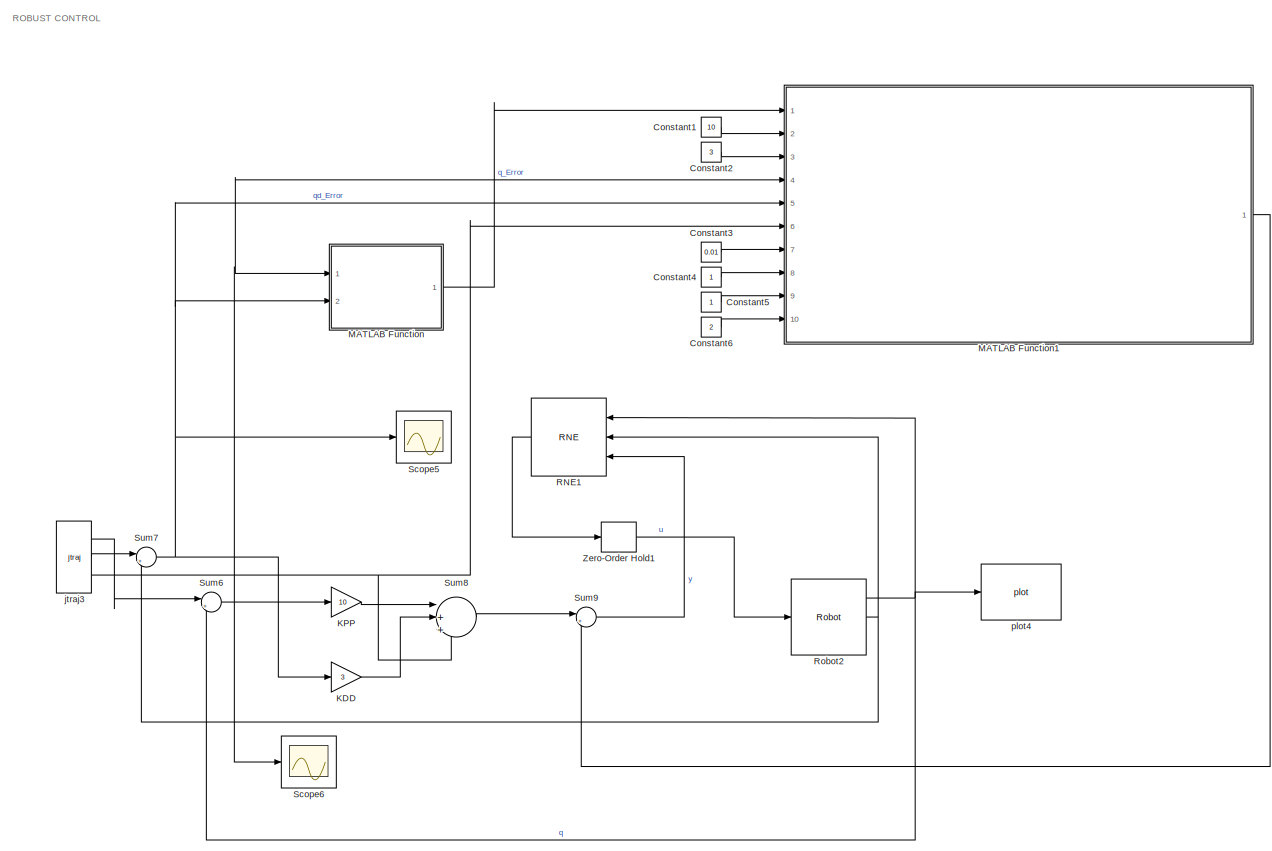
[diagram: root canvas - part 1/6, top right region]
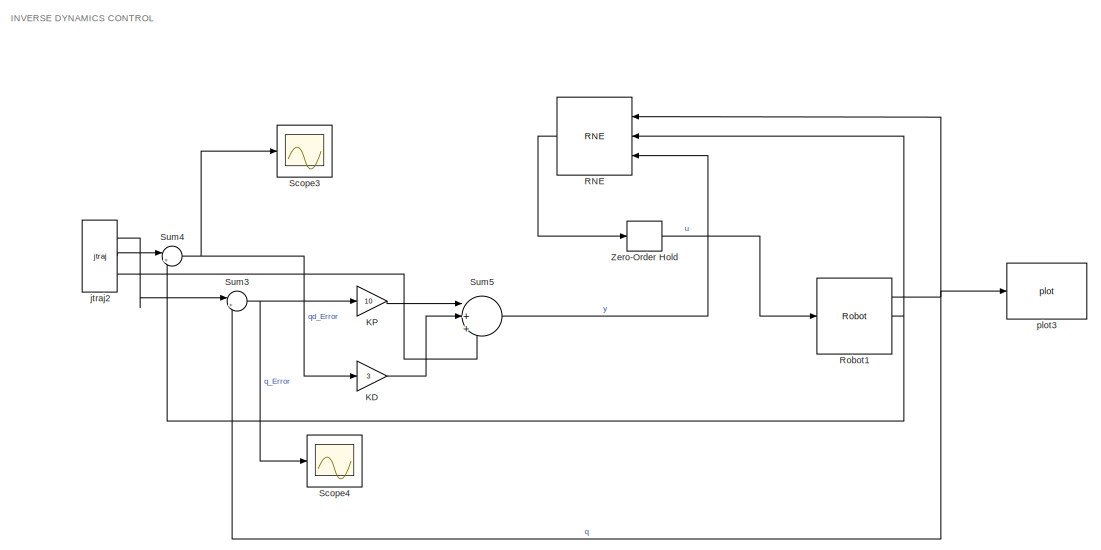
[diagram: root canvas - part 2/6, top center region]
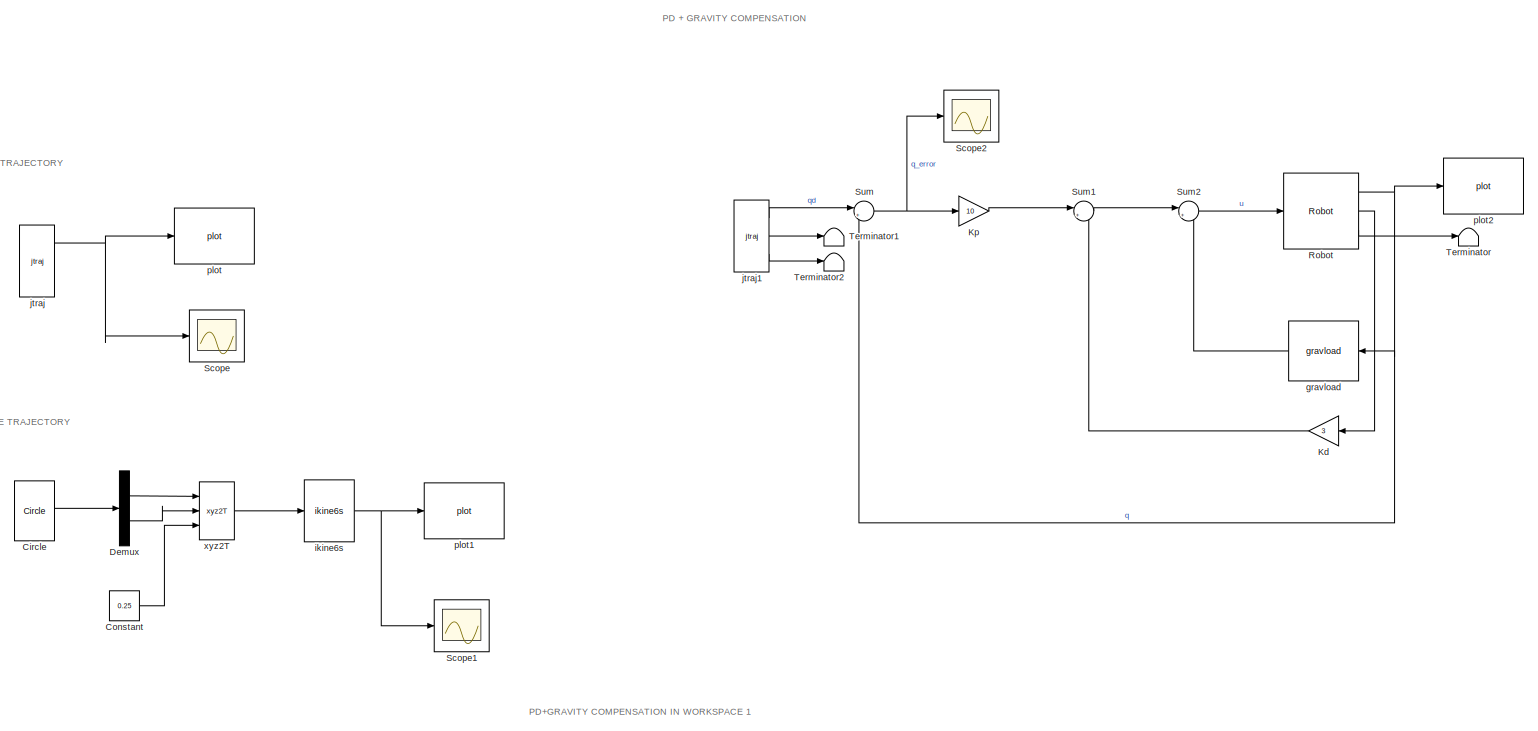
[diagram: root canvas - part 3/6, middle left region]
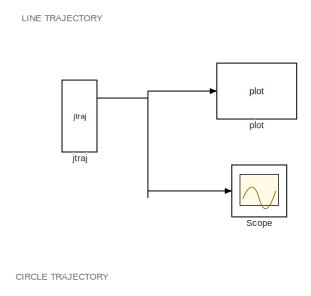
[diagram: root canvas - part 4/6, middle left region]
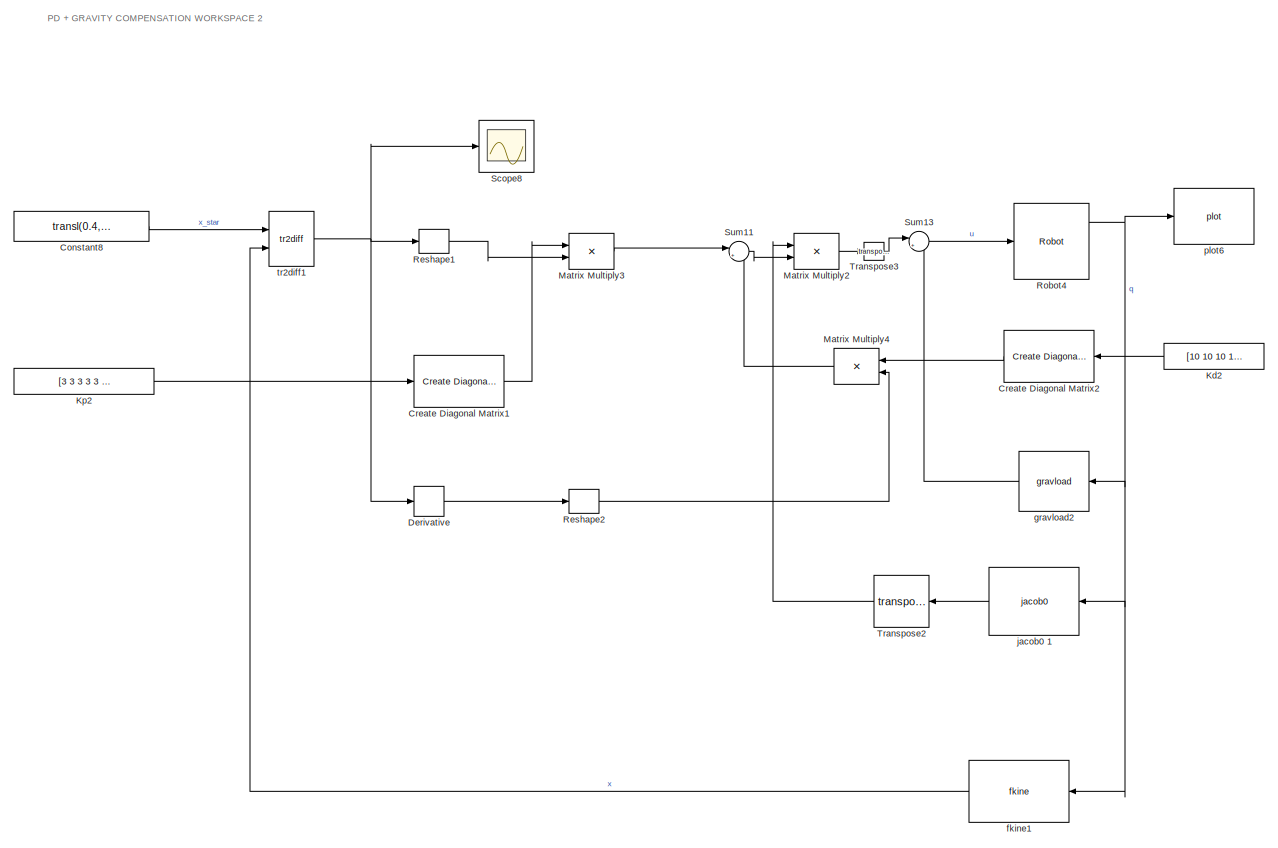
[diagram: root canvas - part 5/6, bottom center region]
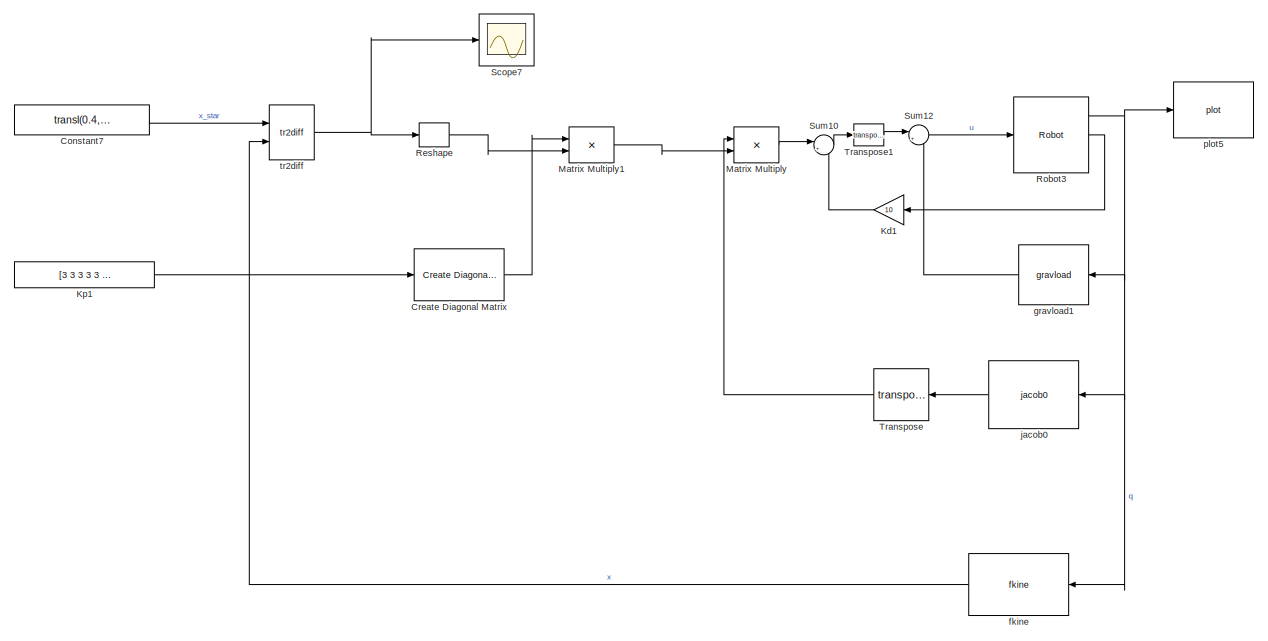
[diagram: root canvas - part 6/6, bottom left region]
MODEL slx_2fe8f5f0938f
KIND model
CONFIG AbsTol = auto
CONFIG EnableMultiTasking = off
CONFIG FixedStep = auto
CONFIG MaxStep = 0.01
CONFIG MinStep = auto
CONFIG RelTol = 1e-3
CONFIG SampleTimeConstraint = Unconstrained
CONFIG Solver = ode45
CONFIG SolverName = ode45
CONFIG StartTime = 0.0
CONFIG StopTime = 10
BLOCK [Reference] Circle  REF=roblocks/Toolbox/Circle  (lib defined in mdl_2a292b13c81b, mdl_69400f8cfe22, +12 more)
  Commented = on
  Ports = [0, 1]
  SourceBlock = roblocks/Toolbox/Circle
BLOCK [Constant] Constant
  Commented = on
  Value = 0.25
BLOCK [Constant] Constant1
  Value = 10
BLOCK [Constant] Constant2
  Value = 3
BLOCK [Constant] Constant3
  Value = 0.01
BLOCK [Constant] Constant4
BLOCK [Constant] Constant5
BLOCK [Constant] Constant6
  Value = 2
BLOCK [Constant] Constant7
  Commented = on
  Value = transl(0.4, 0.5, 0.2)
BLOCK [Constant] Constant8
  Commented = on
  Value = transl(0.4, 0.5, 0.2)
BLOCK [Reference] Create Diagonal Matrix  REF=dspmtrx3/Create Diagonal
Matrix
  Commented = on
  Ports = [1, 1]
  SourceBlock = dspmtrx3/Create Diagonal\nMatrix
  SourceProductBaseCode = DS
  SourceProductName = DSP System Toolbox
  SourceType = Create Diagonal Matrix
BLOCK [Reference] Create Diagonal Matrix1  REF=dspmtrx3/Create Diagonal
Matrix
  Commented = on
  Ports = [1, 1]
  SourceBlock = dspmtrx3/Create Diagonal\nMatrix
  SourceProductBaseCode = DS
  SourceProductName = DSP System Toolbox
  SourceType = Create Diagonal Matrix
BLOCK [Reference] Create Diagonal Matrix2  REF=dspmtrx3/Create Diagonal
Matrix
  Commented = on
  Ports = [1, 1]
  SourceBlock = dspmtrx3/Create Diagonal\nMatrix
  SourceProductBaseCode = DS
  SourceProductName = DSP System Toolbox
  SourceType = Create Diagonal Matrix
BLOCK [Demux] Demux
  Commented = on
  DisplayOption = bar
  Outputs = 2
  Ports = [1, 2]
BLOCK [Derivative] Derivative
  Commented = on
BLOCK [Gain] KD
  Commented = on
  Gain = 3
  OutDataTypeStr = Inherit: Inherit via internal rule
  ParamDataTypeStr = Inherit: Inherit via internal rule
  SaturateOnIntegerOverflow = off
BLOCK [Gain] KDD
  Gain = 3
  OutDataTypeStr = Inherit: Inherit via internal rule
  ParamDataTypeStr = Inherit: Inherit via internal rule
  SaturateOnIntegerOverflow = off
BLOCK [Gain] KP
  Commented = on
  Gain = 10
  OutDataTypeStr = Inherit: Inherit via internal rule
  ParamDataTypeStr = Inherit: Inherit via internal rule
  SaturateOnIntegerOverflow = off
BLOCK [Gain] KPP
  Gain = 10
  OutDataTypeStr = Inherit: Inherit via internal rule
  ParamDataTypeStr = Inherit: Inherit via internal rule
  SaturateOnIntegerOverflow = off
BLOCK [Gain] Kd
  Commented = on
  Gain = 3
  OutDataTypeStr = Inherit: Inherit via internal rule
  ParamDataTypeStr = Inherit: Inherit via internal rule
  SaturateOnIntegerOverflow = off
BLOCK [Gain] Kd1
  Commented = on
  Gain = 10
  OutDataTypeStr = Inherit: Inherit via internal rule
  ParamDataTypeStr = Inherit: Inherit via internal rule
  SaturateOnIntegerOverflow = off
BLOCK [Constant] Kd2 
  Commented = on
  Value = [10 10 10 10 10 10]
BLOCK [Gain] Kp
  Commented = on
  Gain = 10
  OutDataTypeStr = Inherit: Inherit via internal rule
  ParamDataTypeStr = Inherit: Inherit via internal rule
  SaturateOnIntegerOverflow = off
BLOCK [Constant] Kp1
  Commented = on
  Value = [3 3 3 3 3 3]
BLOCK [Constant] Kp2
  Commented = on
  Value = [3 3 3 3 3 3]
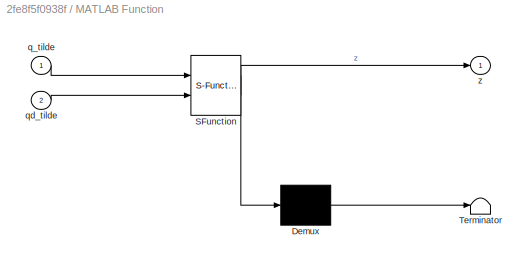
BLOCK [SubSystem] MATLAB Function
  ErrorFcn = Stateflow.Translate.translate
  PermitHierarchicalResolution = ExplicitOnly
  Ports = [2, 1]
  RequestExecContextInheritance = off
  SFBlockType = MATLAB Function
  TreatAsAtomicUnit = on
BLOCK [Demux] MATLAB Function/ Demux 
  Outputs = 1
  Ports = [1, 1]
BLOCK [S-Function] MATLAB Function/ SFunction 
  EnableBusSupport = on
  FunctionName = sf_sfun
  PortCounts = [2 2]
  Ports = [2, 2]
  SFcnIsStateOwnerBlock = off
  SFunctionDeploymentMode = off
  Tag = Stateflow S-Function 2
BLOCK [Terminator] MATLAB Function/ Terminator 
BLOCK [Inport] MATLAB Function/q_tilde
  IconDisplay = Port number
BLOCK [Inport] MATLAB Function/qd_tilde
  IconDisplay = Port number
  Port = 2
BLOCK [Outport] MATLAB Function/z
  IconDisplay = Port number
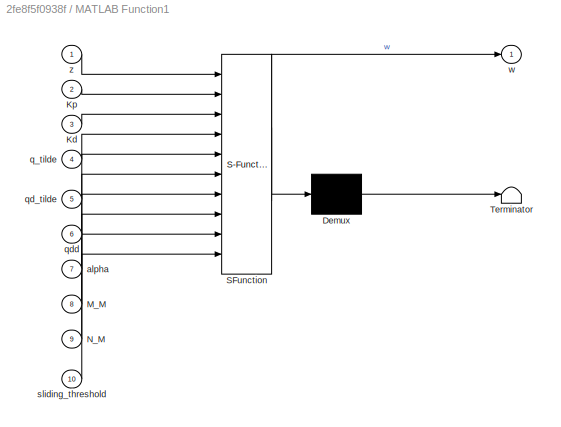
BLOCK [SubSystem] MATLAB Function1
  ErrorFcn = Stateflow.Translate.translate
  PermitHierarchicalResolution = ExplicitOnly
  Ports = [10, 1]
  RequestExecContextInheritance = off
  SFBlockType = MATLAB Function
  TreatAsAtomicUnit = on
BLOCK [Demux] MATLAB Function1/ Demux 
  Outputs = 1
  Ports = [1, 1]
BLOCK [S-Function] MATLAB Function1/ SFunction 
  EnableBusSupport = on
  FunctionName = sf_sfun
  PortCounts = [10 2]
  Ports = [10, 2]
  SFcnIsStateOwnerBlock = off
  SFunctionDeploymentMode = off
  Tag = Stateflow S-Function 1
BLOCK [Terminator] MATLAB Function1/ Terminator 
BLOCK [Inport] MATLAB Function1/Kd
  IconDisplay = Port number
  Port = 3
BLOCK [Inport] MATLAB Function1/Kp
  IconDisplay = Port number
  Port = 2
BLOCK [Inport] MATLAB Function1/M_M
  IconDisplay = Port number
  Port = 8
BLOCK [Inport] MATLAB Function1/N_M
  IconDisplay = Port number
  Port = 9
BLOCK [Inport] MATLAB Function1/alpha
  IconDisplay = Port number
  Port = 7
BLOCK [Inport] MATLAB Function1/q_tilde
  IconDisplay = Port number
  Port = 4
BLOCK [Inport] MATLAB Function1/qd_tilde
  IconDisplay = Port number
  Port = 5
BLOCK [Inport] MATLAB Function1/qdd
  IconDisplay = Port number
  Port = 6
BLOCK [Inport] MATLAB Function1/sliding_threshold
  IconDisplay = Port number
  Port = 10
BLOCK [Outport] MATLAB Function1/w
  IconDisplay = Port number
BLOCK [Inport] MATLAB Function1/z
  IconDisplay = Port number
BLOCK [Product] Matrix Multiply
  Commented = on
  InputSameDT = off
  Multiplication = Matrix(*)
  OutDataTypeStr = Inherit: Inherit via internal rule
  Ports = [2, 1]
  RndMeth = Floor
  SaturateOnIntegerOverflow = off
BLOCK [Product] Matrix Multiply1
  Commented = on
  InputSameDT = off
  Multiplication = Matrix(*)
  OutDataTypeStr = Inherit: Inherit via internal rule
  Ports = [2, 1]
  RndMeth = Floor
  SaturateOnIntegerOverflow = off
BLOCK [Product] Matrix Multiply2
  Commented = on
  InputSameDT = off
  Multiplication = Matrix(*)
  OutDataTypeStr = Inherit: Inherit via internal rule
  Ports = [2, 1]
  RndMeth = Floor
  SaturateOnIntegerOverflow = off
BLOCK [Product] Matrix Multiply3
  Commented = on
  InputSameDT = off
  Multiplication = Matrix(*)
  OutDataTypeStr = Inherit: Inherit via internal rule
  Ports = [2, 1]
  RndMeth = Floor
  SaturateOnIntegerOverflow = off
BLOCK [Product] Matrix Multiply4
  Commented = on
  InputSameDT = off
  Multiplication = Matrix(*)
  OutDataTypeStr = Inherit: Inherit via internal rule
  Ports = [2, 1]
  RndMeth = Floor
  SaturateOnIntegerOverflow = off
BLOCK [Reference] RNE  REF=roblocks/Arm/RNE  (lib defined in mdl_2a292b13c81b, mdl_69400f8cfe22, +12 more)
  Commented = on
  Ports = [3, 1]
  SourceBlock = roblocks/Arm/RNE
BLOCK [Reference] RNE1  REF=roblocks/Arm/RNE  (lib defined in mdl_2a292b13c81b, mdl_69400f8cfe22, +12 more)
  Ports = [3, 1]
  SourceBlock = roblocks/Arm/RNE
BLOCK [Reshape] Reshape
  Commented = on
  OutputDimensionality = Column vector (2-D)
  Ports = [1, 1]
BLOCK [Reshape] Reshape1
  Commented = on
  OutputDimensionality = Column vector (2-D)
  Ports = [1, 1]
BLOCK [Reshape] Reshape2
  Commented = on
  OutputDimensionality = Column vector (2-D)
  Ports = [1, 1]
BLOCK [Reference] Robot  REF=roblocks/Arm/Robot  (lib defined in mdl_2a292b13c81b, mdl_69400f8cfe22, +12 more)
  Commented = on
  Ports = [1, 3]
  SourceBlock = roblocks/Arm/Robot
BLOCK [Reference] Robot1  REF=roblocks/Arm/Robot  (lib defined in mdl_2a292b13c81b, mdl_69400f8cfe22, +12 more)
  Commented = on
  Ports = [1, 3]
  SourceBlock = roblocks/Arm/Robot
BLOCK [Reference] Robot2  REF=roblocks/Arm/Robot  (lib defined in mdl_2a292b13c81b, mdl_69400f8cfe22, +12 more)
  Ports = [1, 3]
  SourceBlock = roblocks/Arm/Robot
BLOCK [Reference] Robot3  REF=roblocks/Arm/Robot  (lib defined in mdl_2a292b13c81b, mdl_69400f8cfe22, +12 more)
  Commented = on
  Ports = [1, 3]
  SourceBlock = roblocks/Arm/Robot
BLOCK [Reference] Robot4  REF=roblocks/Arm/Robot  (lib defined in mdl_2a292b13c81b, mdl_69400f8cfe22, +12 more)
  Commented = on
  Ports = [1, 3]
  SourceBlock = roblocks/Arm/Robot
BLOCK [Scope] Scope
  Commented = on
  Floating = off
  NumInputPorts = 1
  Ports = [1]
  ScopeSpecificationString = Simulink.scopes.TimeScopeBlockCfg('CurrentConfiguration', extmgr.ConfigurationSet(extmgr.Configuration('Core','General UI',true,'FigureColor',[0 0 0]),extmgr.Configuration('Core','Source UI',true),extmgr.Configuration('Sources','WiredSimulink',true),extmgr.Configuration('Visuals','Time Domain',true,'SerializedDisplays',{struct('MinYLimReal','-1.2171','MaxYLimReal','4.35869','YLabelReal','q (rad)',...<+1629ch>
BLOCK [Scope] Scope1
  Commented = on
  Floating = off
  NumInputPorts = 1
  Ports = [1]
  ScopeSpecificationString = Simulink.scopes.TimeScopeBlockCfg('CurrentConfiguration', extmgr.ConfigurationSet(extmgr.Configuration('Core','General UI',true,'FigureColor',[0 0 0]),extmgr.Configuration('Core','Source UI',true),extmgr.Configuration('Sources','WiredSimulink',true,'DataLoggingVariableName','ScopeData1'),extmgr.Configuration('Visuals','Time Domain',true,'SerializedDisplays',{struct('MinYLimReal','-4','MaxYLimReal'...<+1646ch>
BLOCK [Scope] Scope2
  Commented = on
  Floating = off
  NumInputPorts = 1
  Ports = [1]
  ScopeSpecificationString = Simulink.scopes.TimeScopeBlockCfg('CurrentConfiguration', extmgr.ConfigurationSet(extmgr.Configuration('Core','General UI',true,'FigureColor',[0 0 0]),extmgr.Configuration('Core','Source UI',true),extmgr.Configuration('Sources','WiredSimulink',true,'DataLoggingVariableName','ScopeData2'),extmgr.Configuration('Visuals','Time Domain',true,'SerializedDisplays',{struct('MinYLimReal','-2','MaxYLimReal'...<+1650ch>
BLOCK [Scope] Scope3
  Commented = on
  Floating = off
  NumInputPorts = 1
  Ports = [1]
  ScopeSpecificationString = Simulink.scopes.TimeScopeBlockCfg('CurrentConfiguration', extmgr.ConfigurationSet(extmgr.Configuration('Core','General UI',true,'FigureColor',[0 0 0]),extmgr.Configuration('Core','Source UI',true),extmgr.Configuration('Sources','WiredSimulink',true,'DataLoggingVariableName','ScopeData1'),extmgr.Configuration('Visuals','Time Domain',true,'SerializedDisplays',{struct('MinYLimReal','-20','MaxYLimReal...<+1674ch>
BLOCK [Scope] Scope4
  Commented = on
  Floating = off
  NumInputPorts = 1
  Ports = [1]
  ScopeSpecificationString = Simulink.scopes.TimeScopeBlockCfg('CurrentConfiguration', extmgr.ConfigurationSet(extmgr.Configuration('Core','General UI',true,'FigureColor',[0 0 0]),extmgr.Configuration('Core','Source UI',true),extmgr.Configuration('Sources','WiredSimulink',true,'DataLoggingVariableName','ScopeData2'),extmgr.Configuration('Visuals','Time Domain',true,'SerializedDisplays',{struct('MinYLimReal','-5','MaxYLimReal'...<+1662ch>
BLOCK [Scope] Scope5
  Floating = off
  NumInputPorts = 1
  Ports = [1]
  ScopeSpecificationString = Simulink.scopes.TimeScopeBlockCfg('CurrentConfiguration', extmgr.ConfigurationSet(extmgr.Configuration('Core','General UI',true,'FigureColor',[0 0 0]),extmgr.Configuration('Core','Source UI',true),extmgr.Configuration('Sources','WiredSimulink',true,'DataLoggingVariableName','ScopeData3'),extmgr.Configuration('Visuals','Time Domain',true,'SerializedDisplays',{struct('MinYLimReal','-20','MaxYLimReal...<+1674ch>
BLOCK [Scope] Scope6
  Floating = off
  NumInputPorts = 1
  Ports = [1]
  ScopeSpecificationString = Simulink.scopes.TimeScopeBlockCfg('CurrentConfiguration', extmgr.ConfigurationSet(extmgr.Configuration('Core','General UI',true,'FigureColor',[0 0 0]),extmgr.Configuration('Core','Source UI',true),extmgr.Configuration('Sources','WiredSimulink',true,'DataLoggingVariableName','ScopeData4'),extmgr.Configuration('Visuals','Time Domain',true,'SerializedDisplays',{struct('MinYLimReal','-5','MaxYLimReal'...<+1662ch>
BLOCK [Scope] Scope7
  Commented = on
  Floating = off
  NumInputPorts = 1
  Ports = [1]
  ScopeSpecificationString = Simulink.scopes.TimeScopeBlockCfg('CurrentConfiguration', extmgr.ConfigurationSet(extmgr.Configuration('Core','General UI',true,'FigureColor',[0 0 0]),extmgr.Configuration('Core','Source UI',true),extmgr.Configuration('Sources','WiredSimulink',true,'DataLoggingVariableName','ScopeData1'),extmgr.Configuration('Visuals','Time Domain',true,'SerializedDisplays',{struct('MinYLimReal','-2','MaxYLimReal'...<+1674ch>
BLOCK [Scope] Scope8
  Commented = on
  Floating = off
  NumInputPorts = 1
  Ports = [1]
  ScopeSpecificationString = Simulink.scopes.TimeScopeBlockCfg('CurrentConfiguration', extmgr.ConfigurationSet(extmgr.Configuration('Core','General UI',true,'FigureColor',[0 0 0]),extmgr.Configuration('Core','Source UI',true),extmgr.Configuration('Sources','WiredSimulink',true,'DataLoggingVariableName','ScopeData1'),extmgr.Configuration('Visuals','Time Domain',true,'SerializedDisplays',{struct('MinYLimReal','-2','MaxYLimReal'...<+1680ch>
BLOCK [Sum] Sum
  Commented = on
  IconShape = round
  InputSameDT = off
  Inputs = |+-
  OutDataTypeStr = Inherit: Inherit via internal rule
  Ports = [2, 1]
  SaturateOnIntegerOverflow = off
BLOCK [Sum] Sum1
  Commented = on
  IconShape = round
  InputSameDT = off
  Inputs = |+-
  OutDataTypeStr = Inherit: Inherit via internal rule
  Ports = [2, 1]
  SaturateOnIntegerOverflow = off
BLOCK [Sum] Sum10
  Commented = on
  IconShape = round
  InputSameDT = off
  Inputs = |+-
  OutDataTypeStr = Inherit: Inherit via internal rule
  Ports = [2, 1]
  SaturateOnIntegerOverflow = off
BLOCK [Sum] Sum11
  Commented = on
  IconShape = round
  InputSameDT = off
  Inputs = |+-
  OutDataTypeStr = Inherit: Inherit via internal rule
  Ports = [2, 1]
  SaturateOnIntegerOverflow = off
BLOCK [Sum] Sum12
  Commented = on
  IconShape = round
  InputSameDT = off
  Inputs = |++
  OutDataTypeStr = Inherit: Inherit via internal rule
  Ports = [2, 1]
  SaturateOnIntegerOverflow = off
BLOCK [Sum] Sum13
  Commented = on
  IconShape = round
  InputSameDT = off
  Inputs = |++
  OutDataTypeStr = Inherit: Inherit via internal rule
  Ports = [2, 1]
  SaturateOnIntegerOverflow = off
BLOCK [Sum] Sum2
  Commented = on
  IconShape = round
  InputSameDT = off
  Inputs = |++
  OutDataTypeStr = Inherit: Inherit via internal rule
  Ports = [2, 1]
  SaturateOnIntegerOverflow = off
BLOCK [Sum] Sum3
  Commented = on
  IconShape = round
  InputSameDT = off
  Inputs = |+-
  OutDataTypeStr = Inherit: Inherit via internal rule
  Ports = [2, 1]
  SaturateOnIntegerOverflow = off
BLOCK [Sum] Sum4
  Commented = on
  IconShape = round
  InputSameDT = off
  Inputs = |+-
  OutDataTypeStr = Inherit: Inherit via internal rule
  Ports = [2, 1]
  SaturateOnIntegerOverflow = off
BLOCK [Sum] Sum5
  Commented = on
  IconShape = round
  InputSameDT = off
  Inputs = |+++
  OutDataTypeStr = Inherit: Inherit via internal rule
  Ports = [3, 1]
  SaturateOnIntegerOverflow = off
BLOCK [Sum] Sum6
  IconShape = round
  InputSameDT = off
  Inputs = |+-
  OutDataTypeStr = Inherit: Inherit via internal rule
  Ports = [2, 1]
  SaturateOnIntegerOverflow = off
BLOCK [Sum] Sum7
  IconShape = round
  InputSameDT = off
  Inputs = |+-
  OutDataTypeStr = Inherit: Inherit via internal rule
  Ports = [2, 1]
  SaturateOnIntegerOverflow = off
BLOCK [Sum] Sum8
  IconShape = round
  InputSameDT = off
  Inputs = |+++
  OutDataTypeStr = Inherit: Inherit via internal rule
  Ports = [3, 1]
  SaturateOnIntegerOverflow = off
BLOCK [Sum] Sum9
  IconShape = round
  InputSameDT = off
  Inputs = |++
  OutDataTypeStr = Inherit: Inherit via internal rule
  Ports = [2, 1]
  SaturateOnIntegerOverflow = off
BLOCK [Terminator] Terminator
  Commented = on
BLOCK [Terminator] Terminator1
  Commented = on
BLOCK [Terminator] Terminator2
  Commented = on
BLOCK [Math] Transpose
  Commented = on
  Operator = transpose
  Ports = [1, 1]
  SignedPower = off
BLOCK [Math] Transpose1
  Commented = on
  Operator = transpose
  Ports = [1, 1]
  SignedPower = off
BLOCK [Math] Transpose2
  Commented = on
  Operator = transpose
  Ports = [1, 1]
  SignedPower = off
BLOCK [Math] Transpose3
  Commented = on
  Operator = transpose
  Ports = [1, 1]
  SignedPower = off
BLOCK [ZeroOrderHold] Zero-Order Hold
  Commented = on
  SampleTime = -1
BLOCK [ZeroOrderHold] Zero-Order Hold1
  SampleTime = -1
BLOCK [Reference] fkine  REF=roblocks/Arm/fkine  (lib defined in mdl_2a292b13c81b, mdl_69400f8cfe22, +12 more)
  Commented = on
  Ports = [1, 1]
  SourceBlock = roblocks/Arm/fkine
BLOCK [Reference] fkine1  REF=roblocks/Arm/fkine  (lib defined in mdl_2a292b13c81b, mdl_69400f8cfe22, +12 more)
  Commented = on
  Ports = [1, 1]
  SourceBlock = roblocks/Arm/fkine
BLOCK [Reference] gravload  REF=roblocks/Arm/gravload  (lib defined in mdl_2a292b13c81b, mdl_69400f8cfe22, +12 more)
  Commented = on
  Ports = [1, 1]
  SourceBlock = roblocks/Arm/gravload
BLOCK [Reference] gravload1  REF=roblocks/Arm/gravload  (lib defined in mdl_2a292b13c81b, mdl_69400f8cfe22, +12 more)
  Commented = on
  Ports = [1, 1]
  SourceBlock = roblocks/Arm/gravload
BLOCK [Reference] gravload2  REF=roblocks/Arm/gravload  (lib defined in mdl_2a292b13c81b, mdl_69400f8cfe22, +12 more)
  Commented = on
  Ports = [1, 1]
  SourceBlock = roblocks/Arm/gravload
BLOCK [Reference] ikine6s  REF=roblocks/Arm/ikine6s  (lib defined in mdl_2a292b13c81b, mdl_69400f8cfe22, +12 more)
  Commented = on
  Ports = [1, 1]
  SourceBlock = roblocks/Arm/ikine6s
BLOCK [Reference] jacob0   REF=roblocks/Arm/jacob0  (lib defined in mdl_2a292b13c81b, mdl_69400f8cfe22, +12 more)

  Commented = on
  Ports = [1, 1]
  SourceBlock = roblocks/Arm/jacob0
BLOCK [Reference] jacob0 1  REF=roblocks/Arm/jacob0  (lib defined in mdl_2a292b13c81b, mdl_69400f8cfe22, +12 more)

  Commented = on
  Ports = [1, 1]
  SourceBlock = roblocks/Arm/jacob0
BLOCK [Reference] jtraj  REF=roblocks/Toolbox/jtraj  (lib defined in mdl_2a292b13c81b, mdl_69400f8cfe22, +12 more)
  Commented = on
  Ports = [0, 3]
  SourceBlock = roblocks/Toolbox/jtraj
BLOCK [Reference] jtraj1  REF=roblocks/Toolbox/jtraj  (lib defined in mdl_2a292b13c81b, mdl_69400f8cfe22, +12 more)
  Commented = on
  Ports = [0, 3]
  SourceBlock = roblocks/Toolbox/jtraj
BLOCK [Reference] jtraj2  REF=roblocks/Toolbox/jtraj  (lib defined in mdl_2a292b13c81b, mdl_69400f8cfe22, +12 more)
  Commented = on
  Ports = [0, 3]
  SourceBlock = roblocks/Toolbox/jtraj
BLOCK [Reference] jtraj3  REF=roblocks/Toolbox/jtraj  (lib defined in mdl_2a292b13c81b, mdl_69400f8cfe22, +12 more)
  Ports = [0, 3]
  SourceBlock = roblocks/Toolbox/jtraj
BLOCK [Reference] plot  REF=roblocks/Arm/plot  (lib defined in mdl_2a292b13c81b, mdl_69400f8cfe22, +12 more)
  Commented = on
  Ports = [1]
  SourceBlock = roblocks/Arm/plot
BLOCK [Reference] plot1  REF=roblocks/Arm/plot  (lib defined in mdl_2a292b13c81b, mdl_69400f8cfe22, +12 more)
  Commented = on
  Ports = [1]
  SourceBlock = roblocks/Arm/plot
BLOCK [Reference] plot2  REF=roblocks/Arm/plot  (lib defined in mdl_2a292b13c81b, mdl_69400f8cfe22, +12 more)
  Commented = on
  Ports = [1]
  SourceBlock = roblocks/Arm/plot
BLOCK [Reference] plot3  REF=roblocks/Arm/plot  (lib defined in mdl_2a292b13c81b, mdl_69400f8cfe22, +12 more)
  Commented = on
  Ports = [1]
  SourceBlock = roblocks/Arm/plot
BLOCK [Reference] plot4  REF=roblocks/Arm/plot  (lib defined in mdl_2a292b13c81b, mdl_69400f8cfe22, +12 more)
  Ports = [1]
  SourceBlock = roblocks/Arm/plot
BLOCK [Reference] plot5  REF=roblocks/Arm/plot  (lib defined in mdl_2a292b13c81b, mdl_69400f8cfe22, +12 more)
  Commented = on
  Ports = [1]
  SourceBlock = roblocks/Arm/plot
BLOCK [Reference] plot6  REF=roblocks/Arm/plot  (lib defined in mdl_2a292b13c81b, mdl_69400f8cfe22, +12 more)
  Commented = on
  Ports = [1]
  SourceBlock = roblocks/Arm/plot
BLOCK [Reference] tr2diff  REF=roblocks/Toolbox/tr2diff  (lib defined in mdl_2a292b13c81b, mdl_69400f8cfe22, +12 more)
  Commented = on
  Ports = [2, 1]
  SourceBlock = roblocks/Toolbox/tr2diff
BLOCK [Reference] tr2diff1  REF=roblocks/Toolbox/tr2diff  (lib defined in mdl_2a292b13c81b, mdl_69400f8cfe22, +12 more)
  Commented = on
  Ports = [2, 1]
  SourceBlock = roblocks/Toolbox/tr2diff
BLOCK [Reference] xyz2T  REF=roblocks/Toolbox/xyz2T  (lib defined in mdl_2a292b13c81b, mdl_69400f8cfe22, +12 more)
  Commented = on
  Ports = [3, 1]
  SourceBlock = roblocks/Toolbox/xyz2T
ANNOTATION (root): CIRCLE TRAJECTORY
ANNOTATION (root): INVERSE DYNAMICS CONTROL
ANNOTATION (root): LINE TRAJECTORY
ANNOTATION (root): PD + GRAVITY COMPENSATION WORKSPACE 2
ANNOTATION (root): PD + GRAVITY COMPENSATION
ANNOTATION (root): PD+GRAVITY COMPENSATION IN WORKSPACE 1
ANNOTATION (root): ROBUST CONTROL
LINE Circle:1 -> Demux:1
LINE Constant1:1 -> MATLAB Function1:2
LINE Constant2:1 -> MATLAB Function1:3
LINE Constant3:1 -> MATLAB Function1:7
LINE Constant4:1 -> MATLAB Function1:8
LINE Constant5:1 -> MATLAB Function1:9
LINE Constant6:1 -> MATLAB Function1:10
LINE Constant7:1 -> tr2diff:1
LINE Constant8:1 -> tr2diff1:1
LINE Constant:1 -> xyz2T:3
LINE Create Diagonal Matrix1:1 -> Matrix Multiply3:1
LINE Create Diagonal Matrix2:1 -> Matrix Multiply4:1
LINE Create Diagonal Matrix:1 -> Matrix Multiply1:1
LINE Demux:1 -> xyz2T:1
LINE Demux:2 -> xyz2T:2
LINE Derivative:1 -> Reshape2:1
LINE KD:1 -> Sum5:2
LINE KDD:1 -> Sum8:2
LINE KP:1 -> Sum5:1
LINE KPP:1 -> Sum8:1
LINE Kd1:1 -> Sum10:2
LINE Kd2 :1 -> Create Diagonal Matrix2:1
LINE Kd:1 -> Sum1:2
LINE Kp1:1 -> Create Diagonal Matrix:1
LINE Kp2:1 -> Create Diagonal Matrix1:1
LINE Kp:1 -> Sum1:1
LINE MATLAB Function1:1 -> Sum9:2
LINE MATLAB Function:1 -> MATLAB Function1:1
LINE Matrix Multiply1:1 -> Matrix Multiply:2
LINE Matrix Multiply2:1 -> Transpose3:1
LINE Matrix Multiply3:1 -> Sum11:1
LINE Matrix Multiply4:1 -> Sum11:2
LINE Matrix Multiply:1 -> Sum10:1
LINE RNE1:1 -> Zero-Order Hold1:1
LINE RNE:1 -> Zero-Order Hold:1
LINE Reshape1:1 -> Matrix Multiply3:2
LINE Reshape2:1 -> Matrix Multiply4:2
LINE Reshape:1 -> Matrix Multiply1:2
NET Robot1:1 -> RNE:1, Sum3:2, plot3:1
NET Robot1:2 -> RNE:2, Sum4:2
NET Robot2:1 -> RNE1:1, Sum6:2, plot4:1
NET Robot2:2 -> RNE1:2, Sum7:2
NET Robot3:1 -> fkine:1, gravload1:1, jacob0 :1, plot5:1
LINE Robot3:2 -> Kd1:1
NET Robot4:1 -> fkine1:1, gravload2:1, jacob0 1:1, plot6:1
NET Robot:1 -> Sum:2, gravload:1, plot2:1
LINE Robot:2 -> Kd:1
LINE Robot:3 -> Terminator:1
LINE Sum10:1 -> Transpose1:1
LINE Sum11:1 -> Matrix Multiply2:2
LINE Sum12:1 -> Robot3:1
LINE Sum13:1 -> Robot4:1
LINE Sum1:1 -> Sum2:1
LINE Sum2:1 -> Robot:1
NET Sum3:1 -> KP:1, Scope4:1
NET Sum4:1 -> KD:1, Scope3:1
LINE Sum5:1 -> RNE:3
NET Sum6:1 -> KPP:1, MATLAB Function1:4, MATLAB Function:1, Scope6:1
NET Sum7:1 -> KDD:1, MATLAB Function1:5, MATLAB Function:2, Scope5:1
LINE Sum8:1 -> Sum9:1
LINE Sum9:1 -> RNE1:3
NET Sum:1 -> Kp:1, Scope2:1
LINE Transpose1:1 -> Sum12:1
LINE Transpose2:1 -> Matrix Multiply2:1
LINE Transpose3:1 -> Sum13:1
LINE Transpose:1 -> Matrix Multiply:1
LINE Zero-Order Hold1:1 -> Robot2:1
LINE Zero-Order Hold:1 -> Robot1:1
LINE fkine1:1 -> tr2diff1:2
LINE fkine:1 -> tr2diff:2
LINE gravload1:1 -> Sum12:2
LINE gravload2:1 -> Sum13:2
LINE gravload:1 -> Sum2:2
NET ikine6s:1 -> Scope1:1, plot1:1
LINE jacob0 1:1 -> Transpose2:1
LINE jacob0 :1 -> Transpose:1
LINE jtraj1:1 -> Sum:1
LINE jtraj1:2 -> Terminator1:1
LINE jtraj1:3 -> Terminator2:1
LINE jtraj2:1 -> Sum3:1
LINE jtraj2:2 -> Sum4:1
LINE jtraj2:3 -> Sum5:3
LINE jtraj3:1 -> Sum6:1
LINE jtraj3:2 -> Sum7:1
NET jtraj3:3 -> MATLAB Function1:6, Sum8:3
NET jtraj:1 -> Scope:1, plot:1
NET tr2diff1:1 -> Derivative:1, Reshape1:1, Scope8:1
NET tr2diff:1 -> Reshape:1, Scope7:1
LINE xyz2T:1 -> ikine6s:1
note: NET lines group one-source signal fan-out (src -> all destinations, sorted); 1:1 wires keep LINE
CHART MATLAB Function1 states=1 transitions=1
  STATE_LABEL 'eML_blk_kernel()'
  STATE_LABEL 'SCRIPT:\nfunction w = calc_unc(z, Kp, Kd, q_tilde, qd_tilde, qdd, alpha, M_M, N_M, sliding_threshold)\n    K = [eye(6)*Kp eye(6)*Kd];\n    epsilon = [q_tilde; qd_tilde];\n    Q_M = max(abs(qdd)) + 0.1;\n    rho = (1/(1-alpha))*(alpha*Q_M + alpha*norm(K)*norm(epsilon) + M_M*N_M);\n    z_unit_vector = z/norm(z);\n    if norm(z) >= sliding_threshold\n        w = rho * z_unit_vector;\n    else\n        w = rho ...<+41ch>'
CHART MATLAB Function states=1 transitions=1
  STATE_LABEL 'eML_blk_kernel()'
  STATE_LABEL "SCRIPT:\nfunction z = calc_z(q_tilde, qd_tilde)\nD = [eye(6)*0; eye(6)];\nmatrixSize = 12;\nwhile true\n  A = randi ([1 5], matrixSize, matrixSize);\n  if rank (A) == matrixSize; break ; end % will be true nearly all the time    \nend\nQ = A' * A;\nepsilon = [q_tilde; qd_tilde];\nz = transpose(D) * 100 * Q * epsilon;\nend\n"
